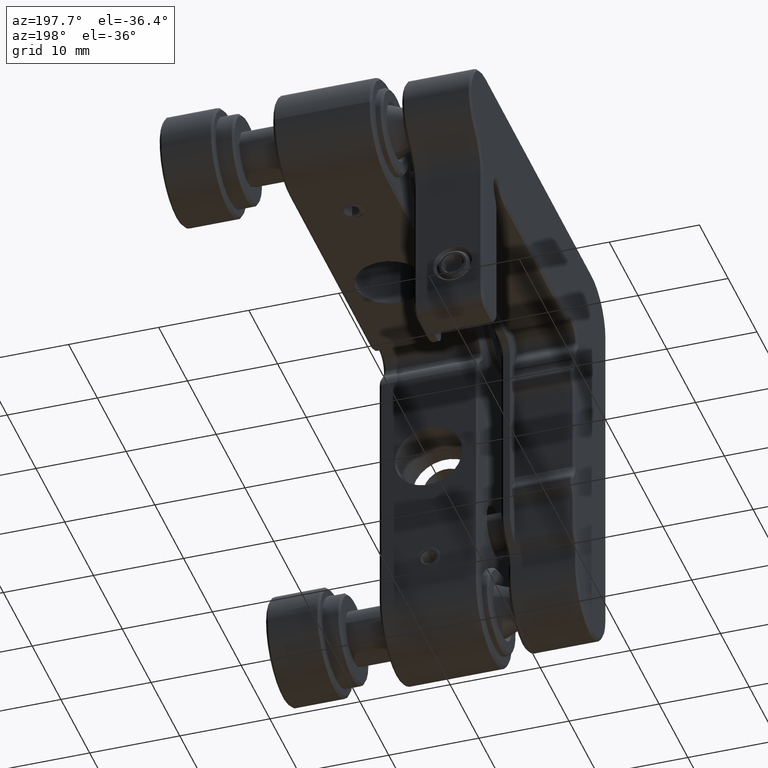
[diagram: clean part render]
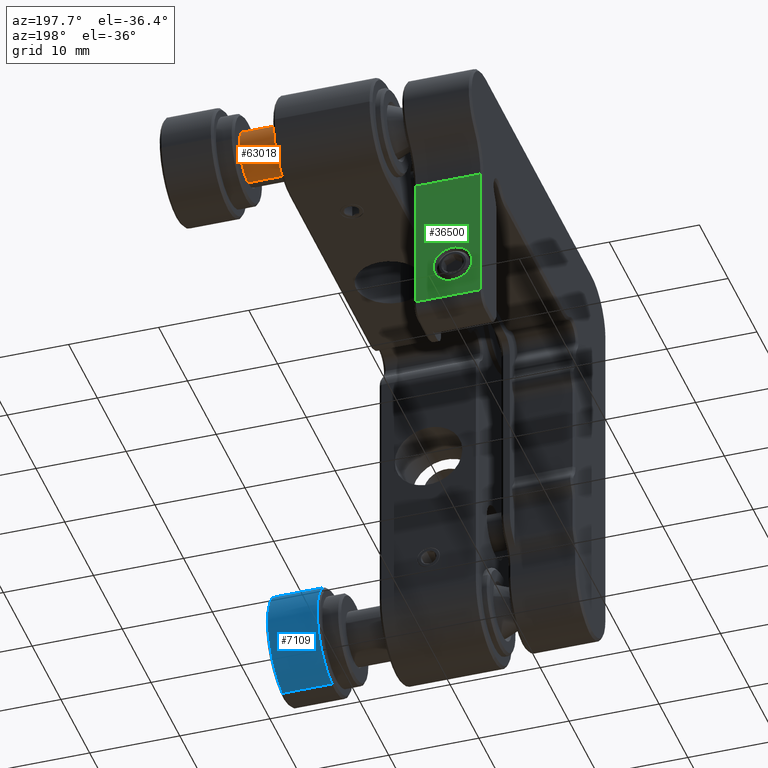
[diagram: same view with three faces highlighted in distinct colors, each labeled with its STEP entity id]
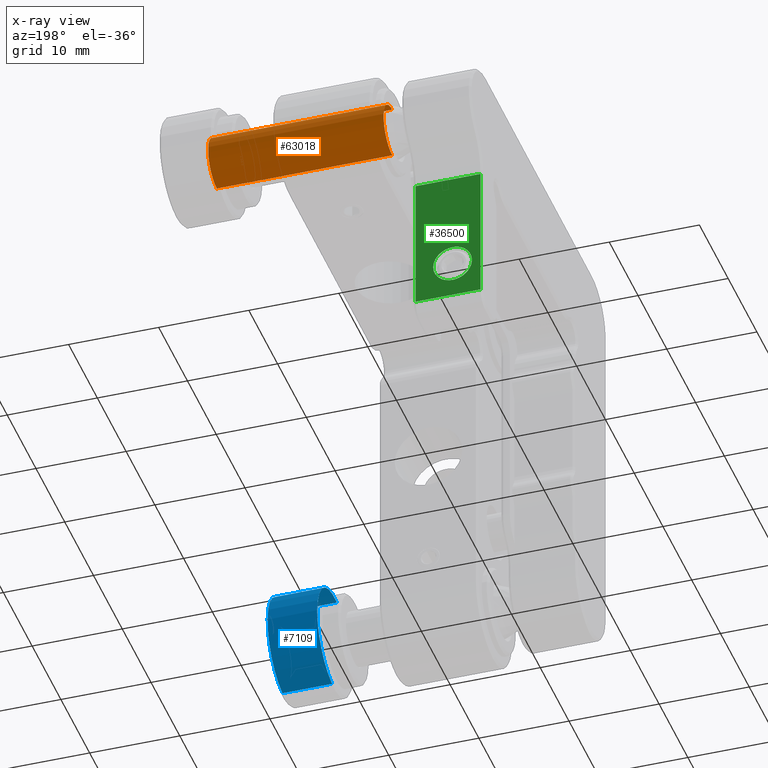
[diagram: x-ray of the same camera — body ghosted, the three highlighted faces saturated]
A machine part, auxiliary view with three faces highlighted in distinct colors.
The next image is the same camera in x-ray (body ghosted, the three faces saturated) — at least one of them is partly hidden behind the body in this view.
Their STEP definitions:

[orange] entity #63018 — the highlighted cylindrical surface (edge-blend (fillet) strip) has radius 3 mm, axis along (-1, -0, 0).
#331 = EDGE_CURVE ( 'NONE', #1946, #41417, #37001, .T. ) ;
#528 = VERTEX_POINT ( 'NONE', #10402 ) ;
#1946 = VERTEX_POINT ( 'NONE', #39191 ) ;
#3671 = AXIS2_PLACEMENT_3D ( 'NONE', #18187, #42841, #53308 ) ;
#5195 = AXIS2_PLACEMENT_3D ( 'NONE', #38337, #8461, #14141 ) ;
#8461 = DIRECTION ( 'NONE',  ( 1.000000000000000000, 2.503708927703435073E-31, -1.294224922628239791E-31 ) ) ;
#10402 = CARTESIAN_POINT ( 'NONE',  ( 13.60735931288052569, 18.50000000000004263, 15.49999999999980815 ) ) ;
#10576 = CYLINDRICAL_SURFACE ( 'NONE', #3671, 3.000000000000058176 ) ;
#12170 = CARTESIAN_POINT ( 'NONE',  ( 14.10735931288051326, 18.50000000000004263, 15.49999999999974953 ) ) ;
#13646 = VECTOR ( 'NONE', #30251, 1000.000000000000000 ) ;
#14141 = DIRECTION ( 'NONE',  ( 0.0000000000000000000, 0.0000000000000000000, -1.000000000000000000 ) ) ;
#16092 = FACE_OUTER_BOUND ( 'NONE', #64512, .T. ) ;
#18187 = CARTESIAN_POINT ( 'NONE',  ( 14.10735931288051326, 18.50000000000004263, 18.49999999999980815 ) ) ;
#20833 = VERTEX_POINT ( 'NONE', #51373 ) ;
#23266 = AXIS2_PLACEMENT_3D ( 'NONE', #52139, #62562, #47771 ) ;
#24890 = VECTOR ( 'NONE', #42471, 1000.000000000000000 ) ;
#27827 = EDGE_CURVE ( 'NONE', #528, #20833, #64650, .T. ) ;
#30251 = DIRECTION ( 'NONE',  ( -1.000000000000000000, -2.615412864477882491E-31, 1.386669559958830834E-31 ) ) ;
#31900 = CARTESIAN_POINT ( 'NONE',  ( -5.862640687119211158, 18.50000000000004263, 21.49999999999980815 ) ) ;
#34497 = ORIENTED_EDGE ( 'NONE', *, *, #27827, .T. ) ;
#37001 = LINE ( 'NONE', #60135, #13646 ) ;
#38337 = CARTESIAN_POINT ( 'NONE',  ( -5.862640687119211158, 18.50000000000003908, 18.49999999999980815 ) ) ;
#39191 = CARTESIAN_POINT ( 'NONE',  ( 13.60735931288052569, 18.50000000000004263, 21.49999999999980815 ) ) ;
#41417 = VERTEX_POINT ( 'NONE', #31900 ) ;
#42471 = DIRECTION ( 'NONE',  ( -1.000000000000000000, -2.615412864477882491E-31, 1.386669559958830834E-31 ) ) ;
#42841 = DIRECTION ( 'NONE',  ( -1.000000000000000000, -2.615412864477882491E-31, 1.386669559958830834E-31 ) ) ;
#47512 = EDGE_CURVE ( 'NONE', #1946, #528, #57624, .T. ) ;
#47771 = DIRECTION ( 'NONE',  ( 0.0000000000000000000, 0.0000000000000000000, -1.000000000000000000 ) ) ;
#49318 = CIRCLE ( 'NONE', #5195, 3.000000000000058176 ) ;
#51373 = CARTESIAN_POINT ( 'NONE',  ( -5.862640687119211158, 18.50000000000004263, 15.49999999999980815 ) ) ;
#52139 = CARTESIAN_POINT ( 'NONE',  ( 13.60735931288052569, 18.50000000000004263, 18.49999999999980815 ) ) ;
#53308 = DIRECTION ( 'NONE',  ( 0.0000000000000000000, 0.0000000000000000000, 1.000000000000000000 ) ) ;
#55966 = ORIENTED_EDGE ( 'NONE', *, *, #47512, .T. ) ;
#56415 = ORIENTED_EDGE ( 'NONE', *, *, #331, .F. ) ;
#57624 = CIRCLE ( 'NONE', #23266, 3.000000000000058176 ) ;
#58247 = EDGE_CURVE ( 'NONE', #20833, #41417, #49318, .T. ) ;
#59839 = ORIENTED_EDGE ( 'NONE', *, *, #58247, .T. ) ;
#60135 = CARTESIAN_POINT ( 'NONE',  ( 14.10735931288051326, 18.50000000000004263, 21.49999999999986500 ) ) ;
#62562 = DIRECTION ( 'NONE',  ( -1.000000000000000000, -2.503708927703435073E-31, 1.294224922628239791E-31 ) ) ;
#63018 = ADVANCED_FACE ( 'NONE', ( #16092 ), #10576, .T. ) ;
#64512 = EDGE_LOOP ( 'NONE', ( #55966, #34497, #59839, #56415 ) ) ;
#64650 = LINE ( 'NONE', #12170, #24890 ) ;

[blue] entity #7109 — the highlighted cylindrical surface (partial cylindrical patch) has radius 6 mm, axis along (1, 0, 0).
#135 = VECTOR ( 'NONE', #46466, 1000.000000000000000 ) ;
#1133 = ORIENTED_EDGE ( 'NONE', *, *, #55961, .T. ) ;
#4361 = ORIENTED_EDGE ( 'NONE', *, *, #46655, .T. ) ;
#4955 = DIRECTION ( 'NONE',  ( 1.000000000000000000, 0.0000000000000000000, 0.0000000000000000000 ) ) ;
#5928 = DIRECTION ( 'NONE',  ( -1.000000000000000000, 0.0000000000000000000, 0.0000000000000000000 ) ) ;
#7109 = ADVANCED_FACE ( 'NONE', ( #48047 ), #59018, .T. ) ;
#7113 = LINE ( 'NONE', #22043, #135 ) ;
#7420 = DIRECTION ( 'NONE',  ( 1.000000000000000000, 0.0000000000000000000, 0.0000000000000000000 ) ) ;
#8767 = VERTEX_POINT ( 'NONE', #34682 ) ;
#15127 = CARTESIAN_POINT ( 'NONE',  ( 12.35735931288067135, -18.49999999999969091, -18.50000000000014921 ) ) ;
#15347 = AXIS2_PLACEMENT_3D ( 'NONE', #15127, #55686, #50230 ) ;
#16147 = EDGE_LOOP ( 'NONE', ( #4361, #1133, #38269, #46115 ) ) ;
#17650 = CIRCLE ( 'NONE', #22019, 6.000000000000093259 ) ;
#18294 = CARTESIAN_POINT ( 'NONE',  ( 12.35735931288067135, -19.35665012049247835, -12.56146898879368834 ) ) ;
#19180 = VERTEX_POINT ( 'NONE', #43466 ) ;
#19821 = CARTESIAN_POINT ( 'NONE',  ( 12.10735931288066958, -17.64334987950690348, -24.43853101120660654 ) ) ;
#21746 = VERTEX_POINT ( 'NONE', #39339 ) ;
#22019 = AXIS2_PLACEMENT_3D ( 'NONE', #36433, #5928, #36219 ) ;
#22043 = CARTESIAN_POINT ( 'NONE',  ( 12.10735931288066958, -19.35665012049247835, -12.56146898879368834 ) ) ;
#24001 = CIRCLE ( 'NONE', #15347, 6.000000000000093259 ) ;
#24746 = VERTEX_POINT ( 'NONE', #18294 ) ;
#26154 = VECTOR ( 'NONE', #4955, 1000.000000000000000 ) ;
#34682 = CARTESIAN_POINT ( 'NONE',  ( 12.35735931288067135, -17.64334987950690348, -24.43853101120660654 ) ) ;
#36219 = DIRECTION ( 'NONE',  ( 0.0000000000000000000, -0.1427750200821288340, 0.9897551685343946026 ) ) ;
#36433 = CARTESIAN_POINT ( 'NONE',  ( 17.85735931288066780, -18.49999999999969091, -18.50000000000014921 ) ) ;
#37281 = CARTESIAN_POINT ( 'NONE',  ( 12.10735931288066958, -18.49999999999969091, -18.50000000000014921 ) ) ;
#38269 = ORIENTED_EDGE ( 'NONE', *, *, #47021, .T. ) ;
#39339 = CARTESIAN_POINT ( 'NONE',  ( 17.85735931288066780, -17.64334987950691769, -24.43853101120651417 ) ) ;
#43466 = CARTESIAN_POINT ( 'NONE',  ( 17.85735931288066780, -19.35665012049246414, -12.56146898879378071 ) ) ;
#44585 = EDGE_CURVE ( 'NONE', #8767, #21746, #51892, .T. ) ;
#46115 = ORIENTED_EDGE ( 'NONE', *, *, #44585, .F. ) ;
#46466 = DIRECTION ( 'NONE',  ( 1.000000000000000000, 0.0000000000000000000, 0.0000000000000000000 ) ) ;
#46655 = EDGE_CURVE ( 'NONE', #8767, #24746, #24001, .T. ) ;
#47021 = EDGE_CURVE ( 'NONE', #19180, #21746, #17650, .T. ) ;
#48047 = FACE_OUTER_BOUND ( 'NONE', #16147, .T. ) ;
#50230 = DIRECTION ( 'NONE',  ( 0.0000000000000000000, -0.1427750200821288340, 0.9897551685343946026 ) ) ;
#51892 = LINE ( 'NONE', #19821, #26154 ) ;
#55686 = DIRECTION ( 'NONE',  ( 1.000000000000000000, -0.0000000000000000000, -0.0000000000000000000 ) ) ;
#55961 = EDGE_CURVE ( 'NONE', #24746, #19180, #7113, .T. ) ;
#58032 = DIRECTION ( 'NONE',  ( 0.0000000000000000000, 0.1427750200821288340, -0.9897551685343946026 ) ) ;
#58364 = AXIS2_PLACEMENT_3D ( 'NONE', #37281, #7420, #58032 ) ;
#59018 = CYLINDRICAL_SURFACE ( 'NONE', #58364, 6.000000000000093259 ) ;

[green] entity #36500 — the highlighted planar face has unit normal (0, -1, -0).
#1765 = FACE_BOUND ( 'NONE', #32563, .T. ) ;
#4748 = VERTEX_POINT ( 'NONE', #9307 ) ;
#5621 = CARTESIAN_POINT ( 'NONE',  ( -12.84606781186552560, 19.40000000000006608, -0.8999999999997552180 ) ) ;
#6289 = CARTESIAN_POINT ( 'NONE',  ( -8.496067811865525954, 19.40000000000005898, 13.58166694905692218 ) ) ;
#6628 = CARTESIAN_POINT ( 'NONE',  ( -8.496067811865525954, 19.40000000000005898, 10.17593849133739070 ) ) ;
#7270 = VECTOR ( 'NONE', #16009, 1000.000000000000000 ) ;
#8277 = ORIENTED_EDGE ( 'NONE', *, *, #41414, .F. ) ;
#9307 = CARTESIAN_POINT ( 'NONE',  ( -14.99606781186551530, 19.40000000000006608, -0.8999999999997555511 ) ) ;
#9604 = AXIS2_PLACEMENT_3D ( 'NONE', #6289, #15292, #10467 ) ;
#10467 = DIRECTION ( 'NONE',  ( -1.000000000000000000, -1.104617359144156075E-16, -9.734964733003769543E-17 ) ) ;
#10742 = EDGE_CURVE ( 'NONE', #40258, #33980, #61831, .T. ) ;
#11278 = CARTESIAN_POINT ( 'NONE',  ( -8.746067811865525954, 19.40000000000006608, -4.999999999999754863 ) ) ;
#11497 = CARTESIAN_POINT ( 'NONE',  ( -12.84606781186552560, 19.40000000000006608, -0.8999999999997552180 ) ) ;
#13071 = LINE ( 'NONE', #56372, #39603 ) ;
#15292 = DIRECTION ( 'NONE',  ( 1.104617359144156568E-16, -1.000000000000000000, -5.034388981345418182E-16 ) ) ;
#16009 = DIRECTION ( 'NONE',  ( -9.734964733003764612E-17, -5.034388981345476361E-16, 1.000000000000000000 ) ) ;
#16236 = DIRECTION ( 'NONE',  ( 9.734964733003764612E-17, 5.034388981345476361E-16, -1.000000000000000000 ) ) ;
#16716 = EDGE_LOOP ( 'NONE', ( #25846, #50010, #51247, #8277 ) ) ;
#16855 = EDGE_CURVE ( 'NONE', #30239, #32150, #58547, .T. ) ;
#17155 = VECTOR ( 'NONE', #41547, 1000.000000000000000 ) ;
#19849 = DIRECTION ( 'NONE',  ( 1.104617359144156691E-16, -1.000000000000000000, -5.034388981345437904E-16 ) ) ;
#22375 = DIRECTION ( 'NONE',  ( 1.000000000000000000, 0.0000000000000000000, 1.008560160451636412E-16 ) ) ;
#24695 = ORIENTED_EDGE ( 'NONE', *, *, #33941, .T. ) ;
#24894 = CARTESIAN_POINT ( 'NONE',  ( -10.69606781186553413, 19.40000000000006608, -0.8999999999997549960 ) ) ;
#25846 = ORIENTED_EDGE ( 'NONE', *, *, #16855, .F. ) ;
#30239 = VERTEX_POINT ( 'NONE', #40649 ) ;
#31691 = CARTESIAN_POINT ( 'NONE',  ( -15.94606781186544708, 19.40000000000013713, -4.999999999999754863 ) ) ;
#32150 = VERTEX_POINT ( 'NONE', #61895 ) ;
#32497 = AXIS2_PLACEMENT_3D ( 'NONE', #11497, #61818, #22375 ) ;
#32554 = DIRECTION ( 'NONE',  ( 1.000000000000000000, 1.104617359144156322E-16, 9.734964733003770775E-17 ) ) ;
#32563 = EDGE_LOOP ( 'NONE', ( #24695, #41018 ) ) ;
#32763 = CARTESIAN_POINT ( 'NONE',  ( -8.496067811865525954, 19.40000000000006608, -4.999999999999754863 ) ) ;
#33941 = EDGE_CURVE ( 'NONE', #48130, #4748, #49392, .T. ) ;
#33980 = VERTEX_POINT ( 'NONE', #11278 ) ;
#35835 = CARTESIAN_POINT ( 'NONE',  ( -8.746067811865525954, 19.40000000000005898, 10.17593849133739070 ) ) ;
#36500 = ADVANCED_FACE ( 'NONE', ( #1765, #60302 ), #55213, .F. ) ;
#39603 = VECTOR ( 'NONE', #16236, 1000.000000000000000 ) ;
#40258 = VERTEX_POINT ( 'NONE', #31691 ) ;
#40649 = CARTESIAN_POINT ( 'NONE',  ( -8.746067811865525954, 19.40000000000005898, 10.17593849133739070 ) ) ;
#41018 = ORIENTED_EDGE ( 'NONE', *, *, #53942, .T. ) ;
#41414 = EDGE_CURVE ( 'NONE', #32150, #40258, #13071, .T. ) ;
#41547 = DIRECTION ( 'NONE',  ( -1.000000000000000000, -1.104617359144156322E-16, -9.734964733003770775E-17 ) ) ;
#44719 = DIRECTION ( 'NONE',  ( 1.000000000000000000, 0.0000000000000000000, 1.008560160451636412E-16 ) ) ;
#48130 = VERTEX_POINT ( 'NONE', #24894 ) ;
#49392 = CIRCLE ( 'NONE', #32497, 2.149999999999990585 ) ;
#50010 = ORIENTED_EDGE ( 'NONE', *, *, #61250, .F. ) ;
#51247 = ORIENTED_EDGE ( 'NONE', *, *, #10742, .F. ) ;
#53942 = EDGE_CURVE ( 'NONE', #4748, #48130, #63288, .T. ) ;
#54063 = VECTOR ( 'NONE', #32554, 1000.000000000000000 ) ;
#55213 = PLANE ( 'NONE',  #9604 ) ;
#56372 = CARTESIAN_POINT ( 'NONE',  ( -15.94606781186551281, 19.40000000000013003, 13.58166694905692218 ) ) ;
#58547 = LINE ( 'NONE', #6628, #17155 ) ;
#60302 = FACE_OUTER_BOUND ( 'NONE', #16716, .T. ) ;
#61250 = EDGE_CURVE ( 'NONE', #33980, #30239, #63469, .T. ) ;
#61818 = DIRECTION ( 'NONE',  ( 1.104617359144156691E-16, -1.000000000000000000, -5.034388981345437904E-16 ) ) ;
#61831 = LINE ( 'NONE', #32763, #54063 ) ;
#61895 = CARTESIAN_POINT ( 'NONE',  ( -15.94606781186551281, 19.40000000000013003, 10.17593849133739603 ) ) ;
#63288 = CIRCLE ( 'NONE', #63564, 2.149999999999990585 ) ;
#63469 = LINE ( 'NONE', #35835, #7270 ) ;
#63564 = AXIS2_PLACEMENT_3D ( 'NONE', #5621, #19849, #44719 ) ;